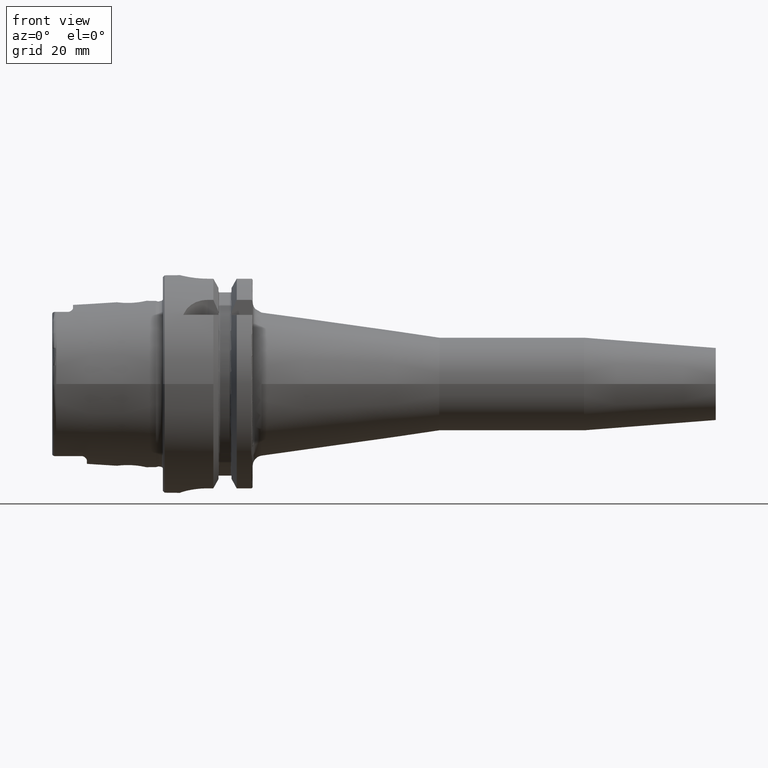
[diagram: clean part render]
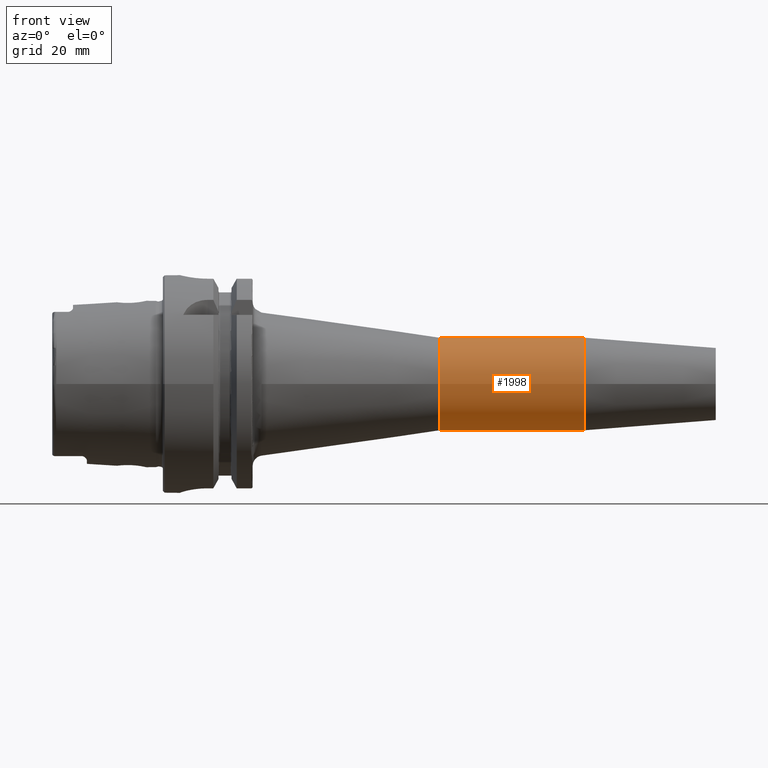
[diagram: same view with one face highlighted and labeled with its STEP entity id]
A machine part, front view. The second image highlights one B-rep face of the part: STEP entity #1998.
In plain terms, the highlighted cylindrical surface (bore or boss wall) has radius 13.5 mm, axis along (1, 0, 0).
Its self-contained STEP definition (entity closure, byte-faithful):
#181=CYLINDRICAL_SURFACE('',#2160,13.5);
#224=FACE_OUTER_BOUND('',#346,.T.);
#346=EDGE_LOOP('',(#1390,#1391,#1392,#1393));
#482=LINE('',#3078,#593);
#593=VECTOR('',#2466,13.5);
#693=CIRCLE('',#2143,13.5);
#704=CIRCLE('',#2161,13.5);
#820=VERTEX_POINT('',#3026);
#839=VERTEX_POINT('',#3076);
#1029=EDGE_CURVE('',#820,#820,#693,.T.);
#1053=EDGE_CURVE('',#839,#839,#704,.T.);
#1054=EDGE_CURVE('',#839,#820,#482,.T.);
#1390=ORIENTED_EDGE('',*,*,#1053,.F.);
#1391=ORIENTED_EDGE('',*,*,#1054,.T.);
#1392=ORIENTED_EDGE('',*,*,#1029,.T.);
#1393=ORIENTED_EDGE('',*,*,#1054,.F.);
#1998=ADVANCED_FACE('',(#224),#181,.T.);
#2143=AXIS2_PLACEMENT_3D('',#3027,#2415,#2416);
#2160=AXIS2_PLACEMENT_3D('',#3075,#2462,#2463);
#2161=AXIS2_PLACEMENT_3D('',#3077,#2464,#2465);
#2415=DIRECTION('center_axis',(1.,0.,0.));
#2416=DIRECTION('ref_axis',(0.,0.,-1.));
#2462=DIRECTION('center_axis',(1.,0.,0.));
#2463=DIRECTION('ref_axis',(0.,1.,0.));
#2464=DIRECTION('center_axis',(1.,0.,0.));
#2465=DIRECTION('ref_axis',(0.,0.,-1.));
#2466=DIRECTION('',(-1.,0.,0.));
#3026=CARTESIAN_POINT('',(80.,-13.5,-1.65327317884893E-15));
#3027=CARTESIAN_POINT('Origin',(80.,0.,0.));
#3075=CARTESIAN_POINT('Origin',(100.940692895738,0.,0.));
#3076=CARTESIAN_POINT('',(121.881385791476,-13.5,-1.65327317884893E-15));
#3077=CARTESIAN_POINT('Origin',(121.881385791476,0.,0.));
#3078=CARTESIAN_POINT('',(100.940692895738,-13.5,-1.65327317884893E-15));